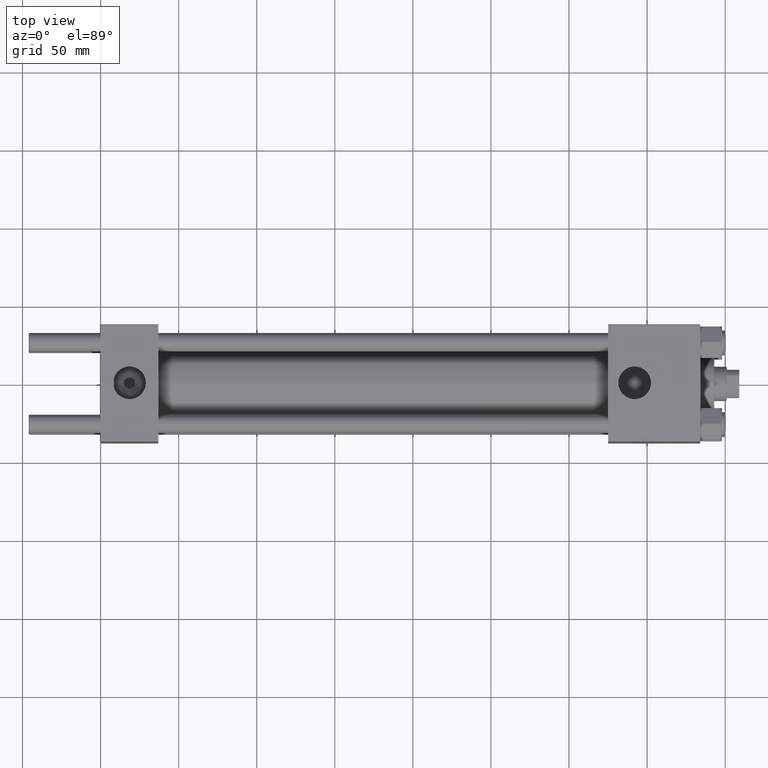
[diagram: clean part render]
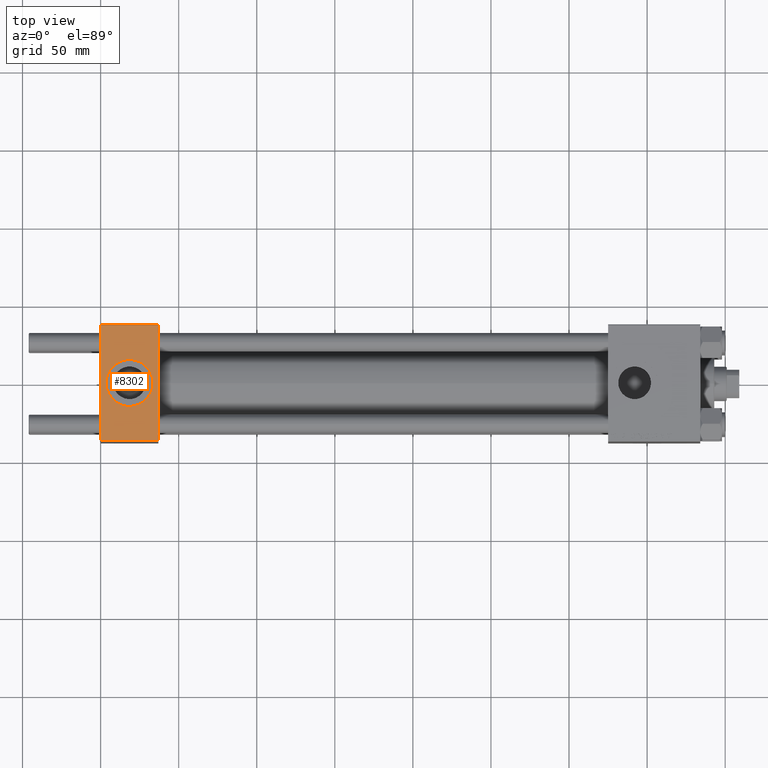
[diagram: same view with one face highlighted and labeled with its STEP entity id]
A machine part, top view. The second image highlights one B-rep face of the part: STEP entity #8302.
In plain terms, the highlighted planar face has unit normal (0, 0, -1).
Its self-contained STEP definition (entity closure, byte-faithful):
#771 = DIRECTION ( 'NONE',  ( 0.000000000000000000, 0.000000000000000000, 1.000000000000000000 ) ) ;
#2288 = AXIS2_PLACEMENT_3D ( 'NONE', #18411, #2680, #34402 ) ;
#2680 = DIRECTION ( 'NONE',  ( 0.000000000000000000, 9.251858538542971581E-17, -1.000000000000000000 ) ) ;
#3751 = ORIENTED_EDGE ( 'NONE', *, *, #7230, .F. ) ;
#4966 = DIRECTION ( 'NONE',  ( 1.000000000000000000, 0.000000000000000000, 0.000000000000000000 ) ) ;
#5108 = ORIENTED_EDGE ( 'NONE', *, *, #14556, .T. ) ;
#6628 = FACE_BOUND ( 'NONE', #45142, .T. ) ;
#7230 = EDGE_CURVE ( 'NONE', #16487, #12234, #27474, .T. ) ;
#7675 = ORIENTED_EDGE ( 'NONE', *, *, #24794, .F. ) ;
#8302 = ADVANCED_FACE ( 'NONE', ( #6628, #18153 ), #14217, .F. ) ;
#9985 = VERTEX_POINT ( 'NONE', #17781 ) ;
#10108 = VERTEX_POINT ( 'NONE', #48021 ) ;
#10727 = LINE ( 'NONE', #26707, #23444 ) ;
#12234 = VERTEX_POINT ( 'NONE', #18967 ) ;
#13346 = CARTESIAN_POINT ( 'NONE',  ( 18.50000000000000000, -5.204170427930421283E-15, 37.50000000000000000 ) ) ;
#14217 = PLANE ( 'NONE',  #2288 ) ;
#14224 = CARTESIAN_POINT ( 'NONE',  ( 0.000000000000000000, -37.00000000000000711, 37.49999999999999289 ) ) ;
#14236 = CARTESIAN_POINT ( 'NONE',  ( 18.50000000000000000, -5.204170427930421283E-15, 37.50000000000000000 ) ) ;
#14556 = EDGE_CURVE ( 'NONE', #10108, #39473, #10727, .T. ) ;
#15539 = CARTESIAN_POINT ( 'NONE',  ( 3.499999999999997780, -3.367200229209391300E-15, 37.50000000000000000 ) ) ;
#16216 = CARTESIAN_POINT ( 'NONE',  ( 37.00000000000000000, 37.49999999999999289, 37.50000000000000000 ) ) ;
#16487 = VERTEX_POINT ( 'NONE', #31941 ) ;
#17781 = CARTESIAN_POINT ( 'NONE',  ( 33.50000000000000000, -5.204170427930421283E-15, 37.50000000000000000 ) ) ;
#18153 = FACE_OUTER_BOUND ( 'NONE', #36291, .T. ) ;
#18202 = ORIENTED_EDGE ( 'NONE', *, *, #28326, .F. ) ;
#18411 = CARTESIAN_POINT ( 'NONE',  ( 37.00000000000000000, 37.49999999999999289, 37.50000000000000000 ) ) ;
#18913 = DIRECTION ( 'NONE',  ( -1.000000000000000000, 0.000000000000000000, 0.000000000000000000 ) ) ;
#18967 = CARTESIAN_POINT ( 'NONE',  ( 37.00000000000000000, -37.00000000000000711, 37.49999999999999289 ) ) ;
#19408 = EDGE_CURVE ( 'NONE', #39473, #12234, #22945, .T. ) ;
#21964 = CIRCLE ( 'NONE', #25324, 15.00000000000000355 ) ;
#22591 = LINE ( 'NONE', #38041, #49595 ) ;
#22945 = LINE ( 'NONE', #46483, #25962 ) ;
#23444 = VECTOR ( 'NONE', #50774, 1000.000000000000000 ) ;
#24794 = EDGE_CURVE ( 'NONE', #36875, #9985, #21964, .T. ) ;
#25324 = AXIS2_PLACEMENT_3D ( 'NONE', #13346, #771, #4966 ) ;
#25962 = VECTOR ( 'NONE', #34222, 1000.000000000000000 ) ;
#26692 = EDGE_CURVE ( 'NONE', #16487, #10108, #22591, .T. ) ;
#26707 = CARTESIAN_POINT ( 'NONE',  ( 0.000000000000000000, 37.49999999999999289, 37.50000000000000000 ) ) ;
#27474 = LINE ( 'NONE', #16216, #39068 ) ;
#28326 = EDGE_CURVE ( 'NONE', #9985, #36875, #35606, .T. ) ;
#30211 = DIRECTION ( 'NONE',  ( 0.000000000000000000, 0.000000000000000000, 1.000000000000000000 ) ) ;
#30744 = DIRECTION ( 'NONE',  ( 1.000000000000000000, 0.000000000000000000, 0.000000000000000000 ) ) ;
#31941 = CARTESIAN_POINT ( 'NONE',  ( 37.00000000000000000, 36.99999999999999289, 37.50000000000000000 ) ) ;
#34222 = DIRECTION ( 'NONE',  ( 1.000000000000000000, 0.000000000000000000, 0.000000000000000000 ) ) ;
#34402 = DIRECTION ( 'NONE',  ( 0.000000000000000000, 1.000000000000000000, 9.251858538542971581E-17 ) ) ;
#35329 = ORIENTED_EDGE ( 'NONE', *, *, #19408, .T. ) ;
#35606 = CIRCLE ( 'NONE', #37248, 15.00000000000000355 ) ;
#36291 = EDGE_LOOP ( 'NONE', ( #5108, #35329, #3751, #39639 ) ) ;
#36875 = VERTEX_POINT ( 'NONE', #15539 ) ;
#37248 = AXIS2_PLACEMENT_3D ( 'NONE', #14236, #30211, #30744 ) ;
#38041 = CARTESIAN_POINT ( 'NONE',  ( 0.000000000000000000, 36.99999999999999289, 37.50000000000000000 ) ) ;
#39068 = VECTOR ( 'NONE', #47352, 1000.000000000000000 ) ;
#39473 = VERTEX_POINT ( 'NONE', #14224 ) ;
#39639 = ORIENTED_EDGE ( 'NONE', *, *, #26692, .T. ) ;
#45142 = EDGE_LOOP ( 'NONE', ( #18202, #7675 ) ) ;
#46483 = CARTESIAN_POINT ( 'NONE',  ( 37.00000000000000000, -37.00000000000000711, 37.49999999999999289 ) ) ;
#47352 = DIRECTION ( 'NONE',  ( 0.000000000000000000, -1.000000000000000000, -9.251858538542971581E-17 ) ) ;
#48021 = CARTESIAN_POINT ( 'NONE',  ( 0.000000000000000000, 36.99999999999999289, 37.50000000000000000 ) ) ;
#49595 = VECTOR ( 'NONE', #18913, 1000.000000000000000 ) ;
#50774 = DIRECTION ( 'NONE',  ( 0.000000000000000000, -1.000000000000000000, -9.251858538542971581E-17 ) ) ;